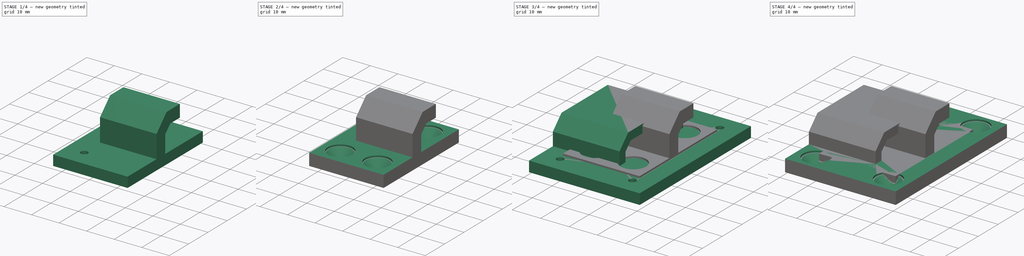
[diagram: build sequence overview — one tinted view per stage of 4, left to right]
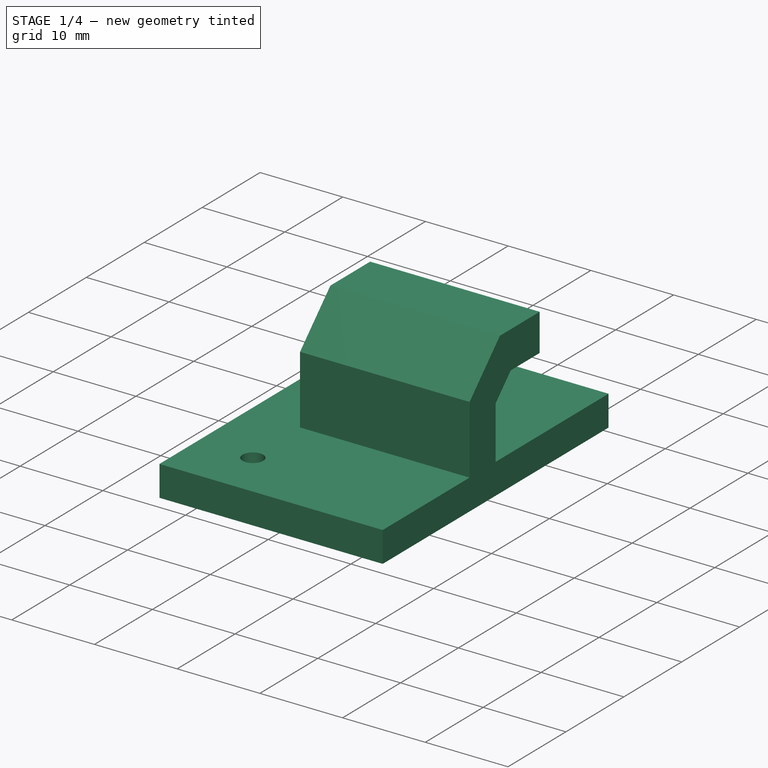
[diagram: stage 1 of 4 — iso view after this stage's code; geometry added in this stage tinted green]
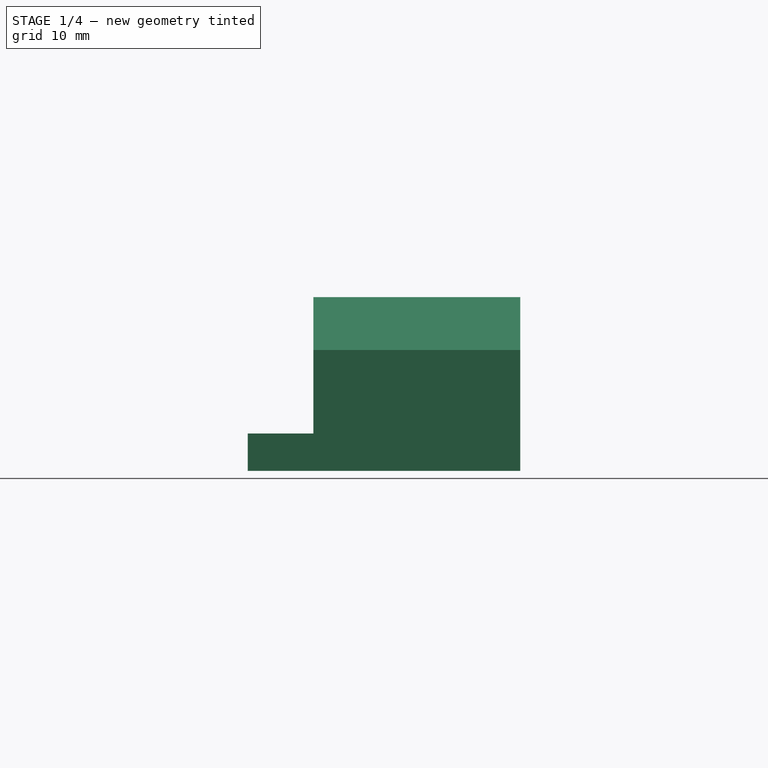
[diagram: stage 1 of 4 — front view after this stage's code; geometry added in this stage tinted green]
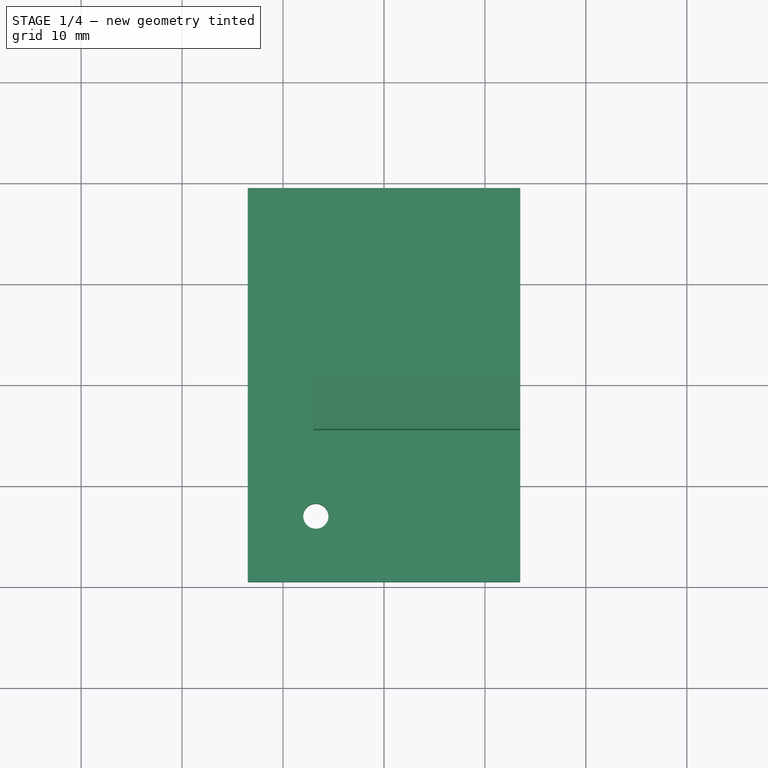
[diagram: stage 1 of 4 — top view after this stage's code; geometry added in this stage tinted green]
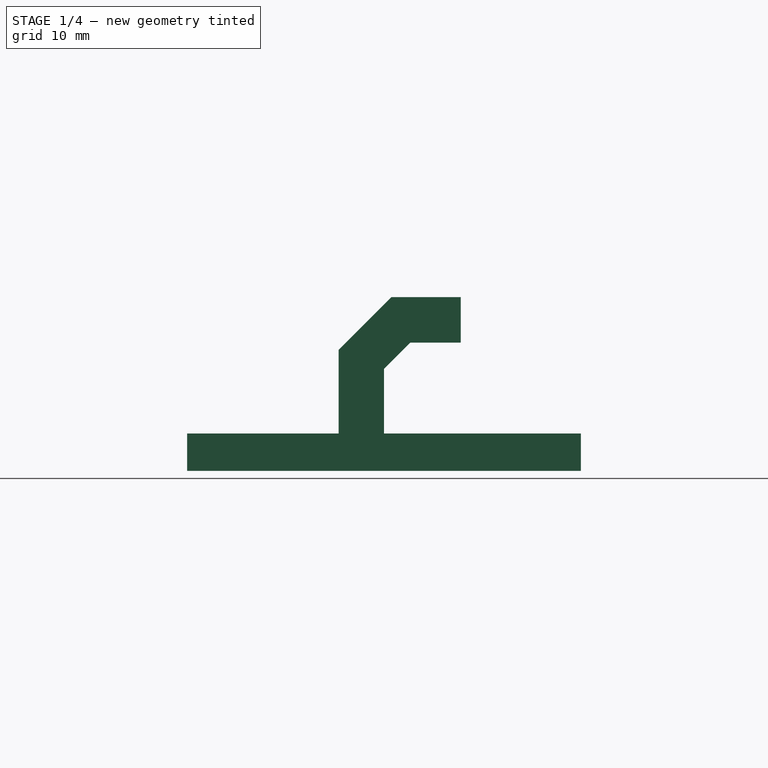
[diagram: stage 1 of 4 — right view after this stage's code; geometry added in this stage tinted green]
FCSTD DOCUMENT  (FreeCAD 1.0R39285 (Git))
Label: Вешалка для ледобура
License: All rights reserved
LicenseURL: https://en.wikipedia.org/wiki/All_rights_reserved
objects: Sketcher::SketchObject×8, PartDesign::Pad×6, PartDesign::Mirrored×4, PartDesign::Plane×2, PartDesign::Pocket×2, PartDesign::MultiTransform×2, PartDesign::Chamfer×2, PartDesign::Body×2, PartDesign::Fillet×1
note: 65 computed .brp shape members not serialized (recipe doc carries the construction recipe); baked Part::Feature solids carry a one-line shape summary decoded from their .brp

FEATURE [PartDesign::Body] Body  label="Петля"
  AllowCompound = false
  Group = -> [Sketch,Pad,DatumPlane,Sketch002,Pad001,Sketch003,Pocket,MultiTransform,Mirrored,Mirrored001,Chamfer,Sketch008,Pad004,Fillet]
  Origin = -> Origin
  Tip = -> Fillet
FEATURE [Sketcher::SketchObject] Sketch010
  ArcFitTolerance = 1e-06
  AttachmentSupport = -> [XY_Plane001]
  FullyConstrained = true
  MakeInternals = false
  MapMode = 5
  sketch-geometry (4):
    g0: LineSegment StartX=-13.5 StartY=19.5 StartZ=0 EndX=-13.5 EndY=-19.5 EndZ=0
    g1: LineSegment StartX=-13.5 StartY=-19.5 StartZ=0 EndX=13.5 EndY=-19.5 EndZ=0
    g2: LineSegment StartX=13.5 StartY=-19.5 StartZ=0 EndX=13.5 EndY=19.5 EndZ=0
    g3: LineSegment StartX=13.5 StartY=19.5 StartZ=0 EndX=-13.5 EndY=19.5 EndZ=0
  constraints (11):
    c: Coincident(g0,g1)
    c: Coincident(g1,g2)
    c: Coincident(g2,g3)
    c: Coincident(g3,g0)
    c: Vertical(g0)
    c: Vertical(g2)
    c: Horizontal(g1)
    c: Horizontal(g3)
    c: DistanceX(g3,g3) = 27
    c: DistanceY(g2,g2) = 39
    c: Symmetric(g2,g0,g-1)
FEATURE [PartDesign::Pad] Pad005  label="Пластина001"
  Direction = (0,0,1)
  Length = 3.7
  Length2 = 10
  Profile = -> Sketch010
  ReferenceAxis = -> Sketch010 [N_Axis]
  Refine = true
  Suppressed = false
  Type = 0
FEATURE [PartDesign::Plane] DatumPlane001
  AttachmentOffset = pos=(-11,0,0) rot=(0,-1,0;1.5708rad)
  AttachmentSupport = -> [Pad005]
  Length = 60
  MapMode = 5
  Placement = pos=(-11,0,3.7) rot=(0,-1,0;1.5708rad)
  ResizeMode = 0
  Width = 60
FEATURE [Sketcher::SketchObject] Sketch011
  ArcFitTolerance = 1e-06
  AttachmentOffset = pos=(0,0,-11) rot=(0,0,-1;1.5708rad)
  AttachmentSupport = -> [DatumPlane001]
  ExternalGeometry = -> [Pad005]
  FullyConstrained = true
  MakeInternals = false
  MapMode = 5
  Placement = pos=(0,0,3.7) rot=(0.57735,-0.57735,-0.57735;2.0944rad)
  sketch-geometry (15):
    g0: LineSegment [constr] StartX=-30.5 StartY=1.35e-14 StartZ=0 EndX=-30.5 EndY=8.26396 EndZ=0
    g1: LineSegment [constr] StartX=-30.5 StartY=8.26396 StartZ=0 EndX=-25.264 EndY=13.5 EndZ=0
    g2: LineSegment StartX=-0.736039 StartY=13.5 StartZ=0 EndX=4.5 EndY=8.26396 EndZ=0
    g3: LineSegment StartX=4.5 StartY=8.26396 StartZ=0 EndX=4.5 EndY=5.3e-15 EndZ=0
    g4: LineSegment [constr] StartX=-30.5 StartY=1.35e-14 StartZ=0 EndX=-26 EndY=1.25e-14 EndZ=0
    g5: LineSegment [constr] StartX=-26 StartY=1.25e-14 StartZ=0 EndX=-26 EndY=6.4 EndZ=0
    g6: LineSegment [constr] StartX=-26 StartY=6.4 StartZ=0 EndX=-23.4 EndY=9 EndZ=0
    g7: LineSegment StartX=-2.6 StartY=9 StartZ=0 EndX=0 EndY=6.4 EndZ=0
    g8: LineSegment StartX=0 StartY=6.4 StartZ=0 EndX=0 EndY=0 EndZ=0
    g9: LineSegment StartX=0 StartY=0 StartZ=0 EndX=4.5 EndY=5.3e-15 EndZ=0
    g10: LineSegment StartX=-7.6 StartY=9 StartZ=0 EndX=-7.6 EndY=13.5 EndZ=0
    g11: LineSegment [constr] StartX=-25.264 StartY=13.5 StartZ=0 EndX=-7.6 EndY=13.5 EndZ=0
    g12: LineSegment StartX=-7.6 StartY=13.5 StartZ=0 EndX=-0.736039 EndY=13.5 EndZ=0
    g13: LineSegment [constr] StartX=-23.4 StartY=9 StartZ=0 EndX=-7.6 EndY=9 EndZ=0
    g14: LineSegment StartX=-7.6 StartY=9 StartZ=0 EndX=-2.6 EndY=9 EndZ=0
  constraints (43):
    c: PointOnObject(g0,g-3)
    c: Vertical(g0)
    c: Coincident(g0,g1)
    c: Coincident(g1,g11)
    c: Coincident(g12,g2)
    c: Coincident(g2,g3)
    c: PointOnObject(g3,g-3)
    c: Coincident(g0,g4)
    c: PointOnObject(g4,g-3)
    c: Coincident(g4,g5)
    c: Vertical(g5)
    c: Coincident(g5,g6)
    c: Coincident(g6,g13)
    c: Coincident(g14,g7)
    c: Coincident(g7,g8)
    c: Vertical(g8)
    c: Coincident(g8,g9)
    c: Coincident(g9,g3)
    c: Vertical(g3)
    c: Angle(g5,g6) = 2.35619
    c: Angle(g7,g8) = 2.35619
    c: Parallel(g6,g1)
    c: Parallel(g2,g7)
    c: Distance(g0,g5) = 4.5
    c: Distance(g1,g6) = 4.5
    c: Distance(g7,g2) = 4.5
    c: Distance(g8,g3) = 4.5
    c: DistanceX(g5,g7) = 26
    c: Equal(g7,g6)
    c: DistanceY(g4,g6) = 9
    c: DistanceY(g6,g6) = 2.6
    c: Vertical(g10)
    c: Coincident(g11,g12)
    c: Horizontal(g11)
    c: Horizontal(g12)
    c: Coincident(g13,g14)
    c: Distance(g11,g13) = 4.5
    c: Horizontal(g13)
    c: Horizontal(g14)
    c: Coincident(g10,g13)
    c: Coincident(g11,g10)
    c: DistanceX(g14,g14) = 5
    c: Coincident(g8,g-1)
FEATURE [PartDesign::Pad] Pad006  label="Скоба001"
  BaseFeature = -> Pad005
  Direction = (-1,0,2e-16)
  Length = 13.5
  Length2 = 7
  Profile = -> Sketch011
  ReferenceAxis = -> Sketch011 [N_Axis]
  Refine = true
  Reversed = true
  Suppressed = false
  Type = 4
FEATURE [Sketcher::SketchObject] Sketch012
  ArcFitTolerance = 1e-06
  AttachmentSupport = -> [Pad006]
  ExternalGeometry = -> [Pad006]
  FullyConstrained = true
  MakeInternals = false
  MapMode = 5
  Placement = pos=(0,0,3.7) rot=(0,0,1;0rad)
  sketch-geometry (7):
    g0: Circle CenterX=-6.75 CenterY=-13 CenterZ=0 NormalX=0 NormalY=0 NormalZ=1 AngleXU=0 Radius=1.25
    g1: ArcOfCircle [constr] CenterX=-1e-16 CenterY=-13 CenterZ=0 NormalX=0 NormalY=0 NormalZ=1 AngleXU=0 Radius=1.25 StartAngle=1.5708 EndAngle=4.71239
    g2: GeomPoint [constr] X=0 Y=-19.5 Z=0
    g3: GeomPoint [constr] X=0 Y=-6.5 Z=0
    g4: GeomPoint [constr] X=-13.5 Y=-13 Z=0
    g5: LineSegment [constr] StartX=-1e-16 StartY=-14.25 StartZ=0 EndX=-1e-16 EndY=-11.75 EndZ=0
    g6: GeomPoint X=-6.75 Y=-13 Z=0
  constraints (15):
    c: Vertical(g1,g1)
    c: Vertical(g1,g1)
    c: Horizontal(g1,g0)
    c: Diameter(g0) = 2.5
    c: Equal(g0,g1)
    c: PointOnObject(g2,g-2)
    c: PointOnObject(g3,g-2)
    c: Symmetric(g2,g3,g1)
    c: PointOnObject(g2,g-3)
    c: Coincident(g5,g1)
    c: Coincident(g5,g1)
    c: Symmetric(g1,g4,g6)
    c: PointOnObject(g4,g-4)
    c: DistanceY(g2,g3) = 13
    c: Coincident(g6,g0)
FEATURE [PartDesign::Mirrored] Mirrored002
  MirrorPlane = -> Sketch012 [V_Axis]
  Refine = true
  Suppressed = false
  TransformMode = 0
FEATURE [PartDesign::Mirrored] Mirrored003
  MirrorPlane = -> Sketch012 [H_Axis]
  Refine = true
  Suppressed = false
  TransformMode = 0
FEATURE [PartDesign::Pocket] Pocket001  label="Вырезы для саморезов001"
  BaseFeature = -> Pad006
  Direction = (0,0,-1)
  Length = 5
  Length2 = 5
  Profile = -> Sketch012
  ReferenceAxis = -> Sketch012 [N_Axis]
  Refine = true
  Suppressed = false
  Type = 1
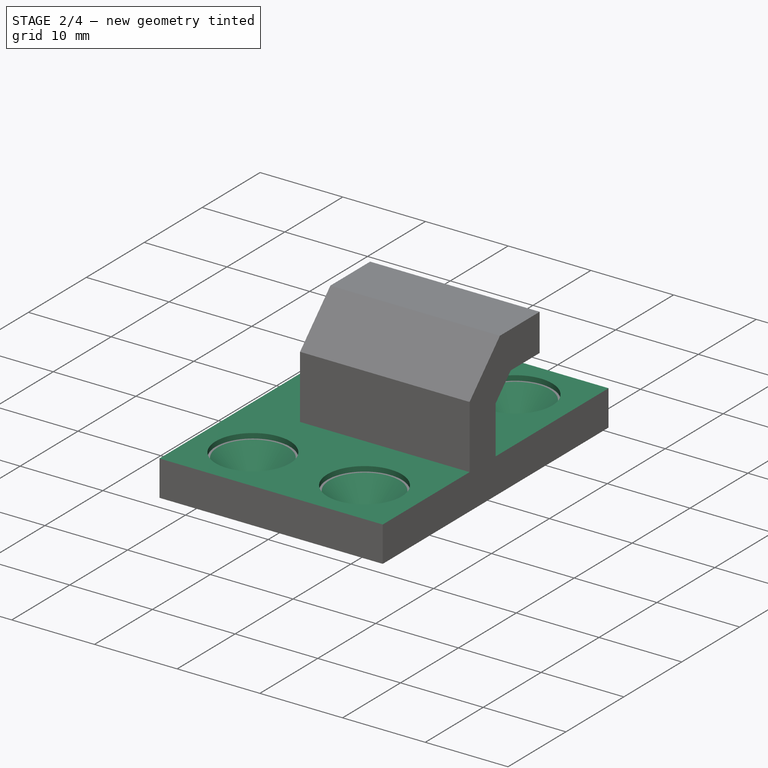
[diagram: stage 2 of 4 — iso view after this stage's code; geometry added in this stage tinted green]
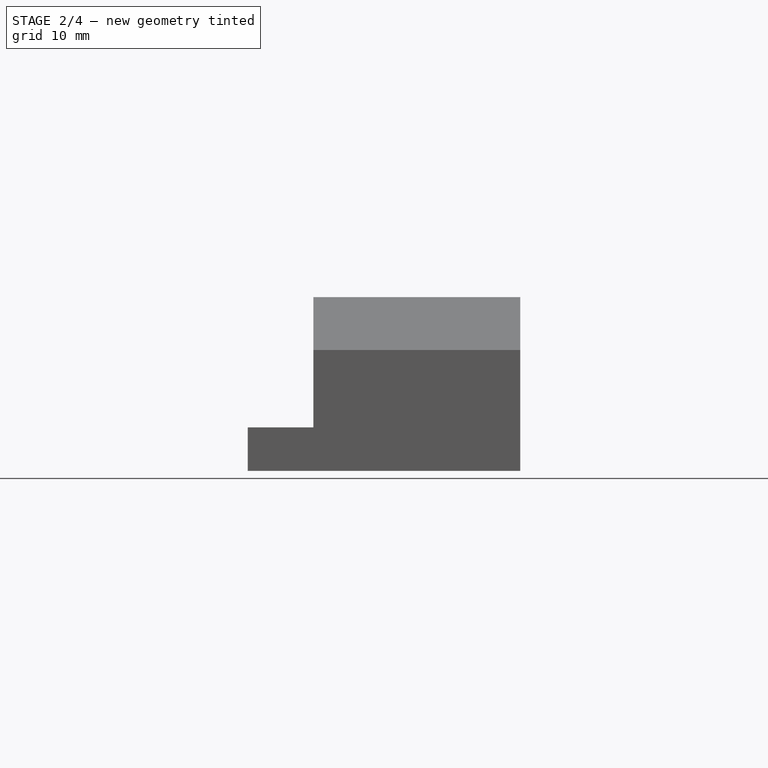
[diagram: stage 2 of 4 — front view after this stage's code; geometry added in this stage tinted green]
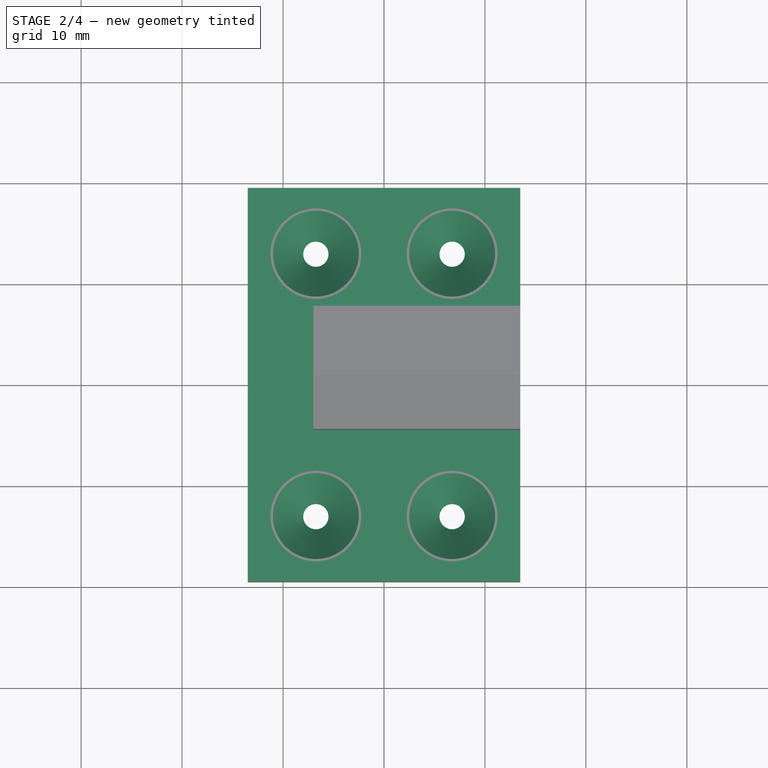
[diagram: stage 2 of 4 — top view after this stage's code; geometry added in this stage tinted green]
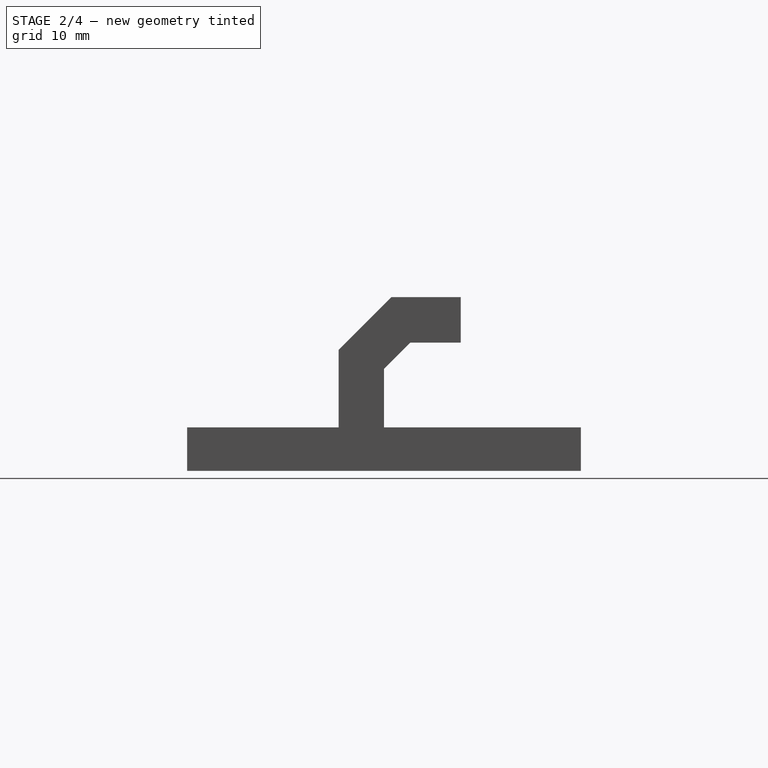
[diagram: stage 2 of 4 — right view after this stage's code; geometry added in this stage tinted green]
FEATURE [PartDesign::MultiTransform] MultiTransform001  label="Дублирование отверстий 001"
  BaseFeature = -> Pocket001
  Originals = -> [Pocket001]
  Refine = true
  Suppressed = false
  TransformMode = 0
  Transformations = -> [Mirrored002,Mirrored003]
FEATURE [PartDesign::Chamfer] Chamfer001  label="Зинковка001"
  Angle = 45
  Base = -> MultiTransform001 [Edge23,Edge24,Edge22,Edge21]
  BaseFeature = -> MultiTransform001
  ChamferType = 0
  FlipDirection = false
  Refine = true
  Size = 3
  Size2 = 1
  SupportTransform = false
  Suppressed = false
  UseAllEdges = false
FEATURE [Sketcher::SketchObject] Sketch013
  ArcFitTolerance = 1e-06
  AttachmentSupport = -> [Chamfer001]
  ExternalGeometry = -> [Chamfer001]
  FullyConstrained = false
  MakeInternals = false
  MapMode = 5
  Placement = pos=(0,0,3.7) rot=(0,0,1;0rad)
  sketch-geometry (10):
    g0: LineSegment StartX=-13.5 StartY=19.5 StartZ=0 EndX=13.5 EndY=19.5 EndZ=0
    g1: LineSegment StartX=13.5 StartY=19.5 StartZ=0 EndX=13.5 EndY=-19.5 EndZ=0
    g2: LineSegment StartX=13.5 StartY=-19.5 StartZ=0 EndX=-13.5 EndY=-19.5 EndZ=0
    g3: LineSegment StartX=-13.5 StartY=-19.5 StartZ=0 EndX=-13.5 EndY=-4.06943 EndZ=0
    g4: Circle CenterX=-6.75 CenterY=-13 CenterZ=0 NormalX=0 NormalY=0 NormalZ=1 AngleXU=0 Radius=4.5
    g5: Circle CenterX=6.75 CenterY=-13 CenterZ=0 NormalX=0 NormalY=0 NormalZ=1 AngleXU=0 Radius=4.5
    g6: Circle CenterX=6.75 CenterY=13 CenterZ=0 NormalX=0 NormalY=0 NormalZ=1 AngleXU=0 Radius=4.5
    g7: Circle CenterX=-6.75 CenterY=13 CenterZ=0 NormalX=0 NormalY=0 NormalZ=1 AngleXU=0 Radius=4.5
    g8: LineSegment StartX=-13.5 StartY=0.430566 StartZ=0 EndX=-13.5 EndY=19.5 EndZ=0
    g9: LineSegment StartX=-13.5 StartY=-4.06943 StartZ=0 EndX=-13.5 EndY=0.430566 EndZ=0
  constraints (20):
    c: Vertical(g3)
    c: Coincident(g4,g-10)
    c: Coincident(g5,g-9)
    c: Coincident(g6,g-8)
    c: Coincident(g7,g-7)
    c: Diameter(g7) = 9
    c: Equal(g7,g6)
    c: Equal(g6,g5)
    c: Equal(g5,g4)
    c: Coincident(g-11,g1)
    c: Coincident(g-11,g0)
    c: Coincident(g2,g-14)
    c: Coincident(g2,g3)
    c: Coincident(g1,g-13)
    c: Coincident(g1,g2)
    c: Coincident(g8,g0)
    c: Vertical(g8)
    c: Coincident(g0,g-12)
    c: Coincident(g9,g3)
    c: Coincident(g9,g8)
FEATURE [PartDesign::Pad] Pad007
  BaseFeature = -> Chamfer001
  Direction = (0,0,1)
  Length = 0.6
  Length2 = 10
  Profile = -> Sketch013
  ReferenceAxis = -> Sketch013 [N_Axis]
  Refine = true
  Suppressed = false
  Type = 0
FEATURE [PartDesign::Body] Body001  label="Крюк"
  AllowCompound = false
  Group = -> [Sketch010,Pad005,DatumPlane001,Sketch011,Pad006,Sketch012,Pocket001,MultiTransform001,Mirrored002,Mirrored003,Chamfer001,Sketch013,Pad007]
  Origin = -> Origin001
  Placement = pos=(-45,0,0) rot=(0,0,1;0rad)
  Tip = -> Pad007
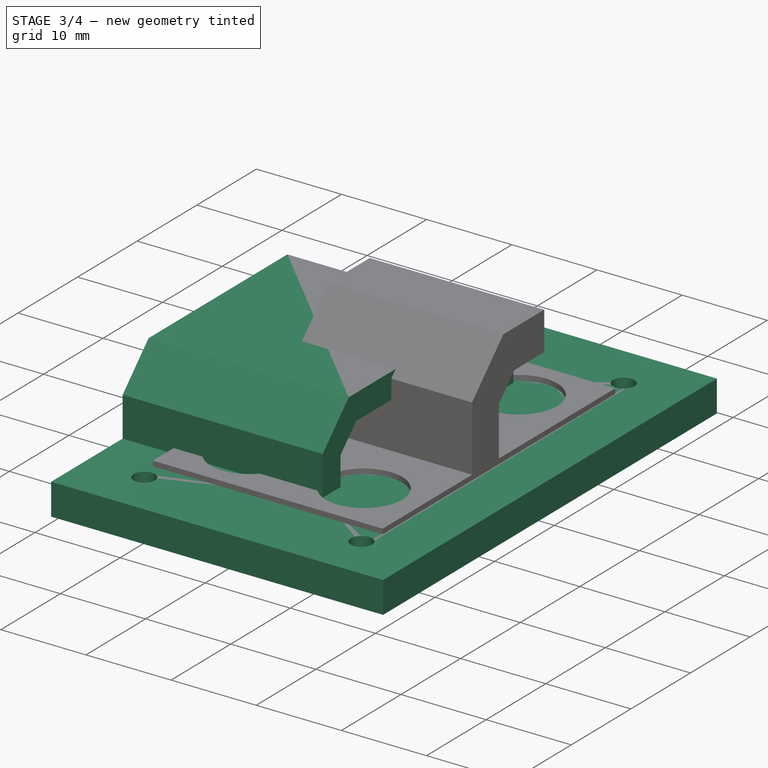
[diagram: stage 3 of 4 — iso view after this stage's code; geometry added in this stage tinted green]
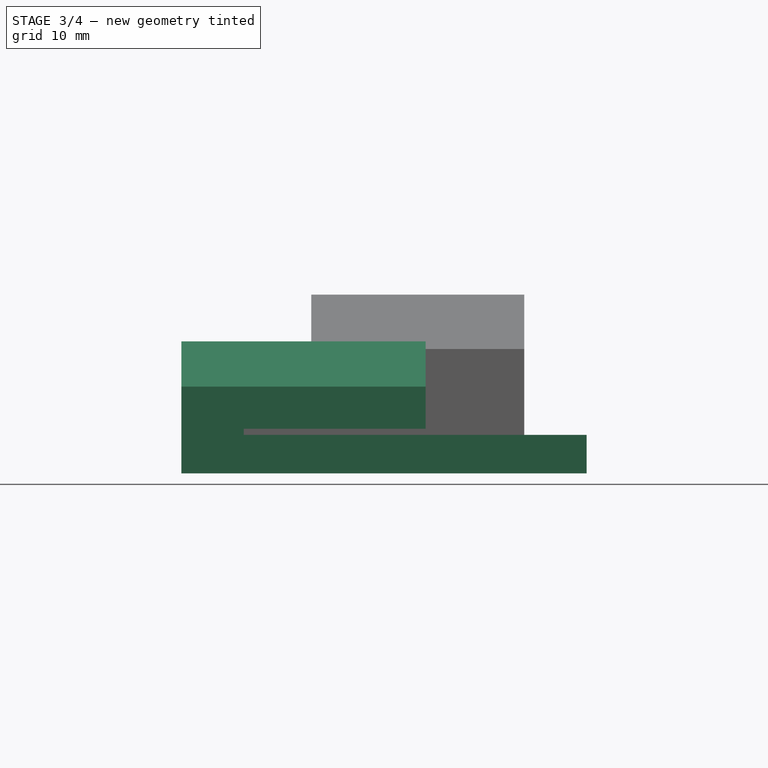
[diagram: stage 3 of 4 — front view after this stage's code; geometry added in this stage tinted green]
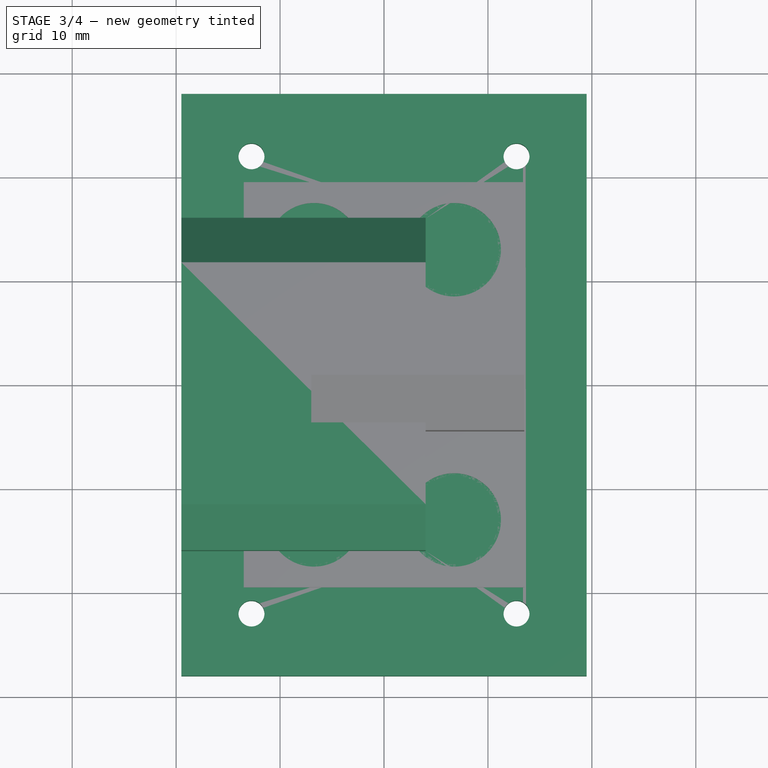
[diagram: stage 3 of 4 — top view after this stage's code; geometry added in this stage tinted green]
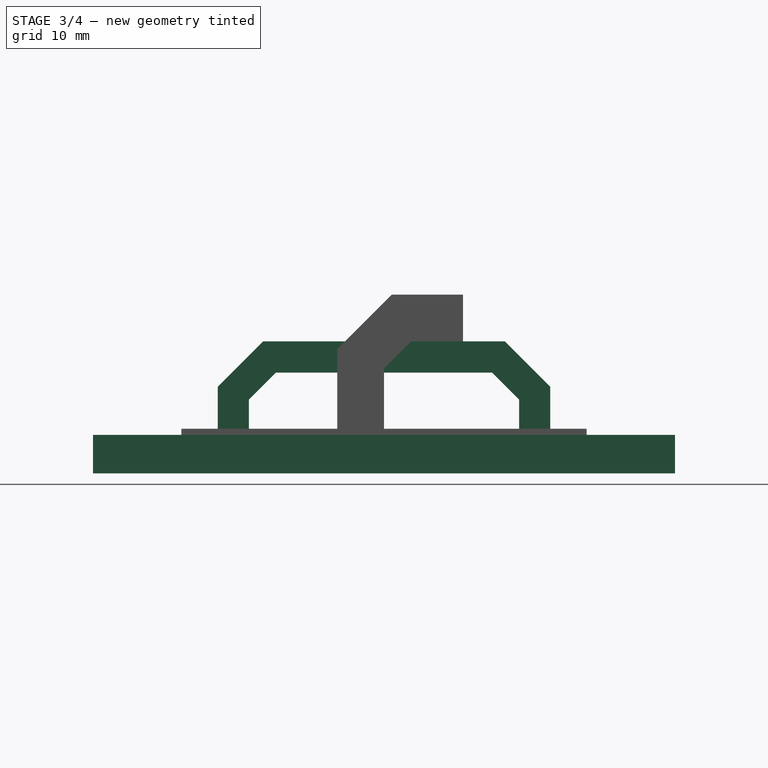
[diagram: stage 3 of 4 — right view after this stage's code; geometry added in this stage tinted green]
FEATURE [Sketcher::SketchObject] Sketch
  ArcFitTolerance = 1e-06
  AttachmentSupport = -> [XY_Plane]
  FullyConstrained = true
  MakeInternals = false
  MapMode = 5
  sketch-geometry (4):
    g0: LineSegment StartX=-19.5 StartY=28 StartZ=0 EndX=-19.5 EndY=-28 EndZ=0
    g1: LineSegment StartX=-19.5 StartY=-28 StartZ=0 EndX=19.5 EndY=-28 EndZ=0
    g2: LineSegment StartX=19.5 StartY=-28 StartZ=0 EndX=19.5 EndY=28 EndZ=0
    g3: LineSegment StartX=19.5 StartY=28 StartZ=0 EndX=-19.5 EndY=28 EndZ=0
  constraints (11):
    c: Coincident(g0,g1)
    c: Coincident(g1,g2)
    c: Coincident(g2,g3)
    c: Coincident(g3,g0)
    c: Vertical(g0)
    c: Vertical(g2)
    c: Horizontal(g1)
    c: Horizontal(g3)
    c: DistanceX(g3,g3) = 39
    c: DistanceY(g2,g2) = 56
    c: Symmetric(g2,g0,g-1)
FEATURE [PartDesign::Pad] Pad  label="Пластина"
  Direction = (0,0,1)
  Length = 3.7
  Length2 = 10
  Profile = -> Sketch
  ReferenceAxis = -> Sketch [N_Axis]
  Refine = true
  Suppressed = false
  Type = 0
FEATURE [PartDesign::Plane] DatumPlane
  AttachmentOffset = pos=(-11,0,0) rot=(0,-1,0;1.5708rad)
  AttachmentSupport = -> [Pad]
  Length = 60
  MapMode = 5
  Placement = pos=(-11,0,3.7) rot=(0,-1,0;1.5708rad)
  ResizeMode = 0
  Width = 60
FEATURE [Sketcher::SketchObject] Sketch002
  ArcFitTolerance = 1e-06
  AttachmentOffset = pos=(0,0,0) rot=(0,0,-1;1.5708rad)
  AttachmentSupport = -> [DatumPlane]
  ExternalGeometry = -> [Pad]
  FullyConstrained = true
  MakeInternals = false
  MapMode = 5
  Placement = pos=(-11,0,3.7) rot=(0.57735,-0.57735,-0.57735;2.0944rad)
  sketch-geometry (12):
    g0: LineSegment StartX=-16 StartY=8.9e-15 StartZ=0 EndX=-16 EndY=4.64264 EndZ=0
    g1: LineSegment StartX=-16 StartY=4.64264 StartZ=0 EndX=-11.6426 EndY=9 EndZ=0
    g2: LineSegment StartX=-11.6426 StartY=9 StartZ=0 EndX=11.6426 EndY=9 EndZ=0
    g3: LineSegment StartX=11.6426 StartY=9 StartZ=0 EndX=16 EndY=4.64264 EndZ=0
    g4: LineSegment StartX=16 StartY=4.64264 StartZ=0 EndX=16 EndY=1.8e-15 EndZ=0
    g5: LineSegment StartX=-16 StartY=8.9e-15 StartZ=0 EndX=-13 EndY=8.2e-15 EndZ=0
    g6: LineSegment StartX=-13 StartY=8.2e-15 StartZ=0 EndX=-13 EndY=3.4 EndZ=0
    g7: LineSegment StartX=-13 StartY=3.4 StartZ=0 EndX=-10.4 EndY=6 EndZ=0
    g8: LineSegment StartX=-10.4 StartY=6 StartZ=0 EndX=10.4 EndY=6 EndZ=0
    g9: LineSegment StartX=10.4 StartY=6 StartZ=0 EndX=13 EndY=3.4 EndZ=0
    g10: LineSegment StartX=13 StartY=3.4 StartZ=0 EndX=13 EndY=2.7e-15 EndZ=0
    g11: LineSegment StartX=13 StartY=2.7e-15 StartZ=0 EndX=16 EndY=1.8e-15 EndZ=0
  constraints (35):
    c: PointOnObject(g0,g-3)
    c: Vertical(g0)
    c: Coincident(g0,g1)
    c: Coincident(g1,g2)
    c: Horizontal(g2)
    c: Coincident(g2,g3)
    c: Coincident(g3,g4)
    c: PointOnObject(g4,g-3)
    c: Coincident(g0,g5)
    c: PointOnObject(g5,g-3)
    c: Coincident(g5,g6)
    c: Vertical(g6)
    c: Coincident(g6,g7)
    c: Coincident(g7,g8)
    c: Coincident(g8,g9)
    c: Coincident(g9,g10)
    c: PointOnObject(g10,g-3)
    c: Vertical(g10)
    c: Coincident(g10,g11)
    c: Coincident(g11,g4)
    c: Vertical(g4)
    c: Angle(g6,g7) = 2.35619
    c: Angle(g9,g10) = 2.35619
    c: Parallel(g7,g1)
    c: Parallel(g3,g9)
    c: Distance(g0,g6) = 3
    c: Distance(g2,g8) = 3
    c: Distance(g1,g7) = 3
    c: Distance(g9,g3) = 3
    c: Distance(g10,g4) = 3
    c: DistanceX(g6,g9) = 26
    c: Equal(g9,g7)
    c: Symmetric(g8,g7,g-2)
    c: DistanceY(g5,g7) = 6
    c: DistanceY(g7,g7) = 2.6
FEATURE [PartDesign::Pad] Pad001  label="Скоба"
  BaseFeature = -> Pad
  Direction = (-1,0,2e-16)
  Length = 15
  Length2 = 8.5
  Profile = -> Sketch002
  ReferenceAxis = -> Sketch002 [N_Axis]
  Refine = true
  Reversed = true
  Suppressed = false
  Type = 4
FEATURE [Sketcher::SketchObject] Sketch003
  ArcFitTolerance = 1e-06
  AttachmentSupport = -> [Pad001]
  ExternalGeometry = -> [Pad001]
  FullyConstrained = true
  MakeInternals = false
  MapMode = 5
  Placement = pos=(0,0,3.7) rot=(0,0,1;0rad)
  sketch-geometry (7):
    g0: Circle CenterX=-12.75 CenterY=-22 CenterZ=0 NormalX=0 NormalY=0 NormalZ=1 AngleXU=0 Radius=1.25
    g1: ArcOfCircle [constr] CenterX=0 CenterY=-22 CenterZ=0 NormalX=0 NormalY=0 NormalZ=1 AngleXU=0 Radius=1.25 StartAngle=1.5708 EndAngle=4.71239
    g2: GeomPoint [constr] X=0 Y=-28 Z=0
    g3: GeomPoint [constr] X=0 Y=-16 Z=0
    g4: GeomPoint [constr] X=-19.5 Y=-22 Z=0
    g5: LineSegment [constr] StartX=0 StartY=-23.25 StartZ=0 EndX=0 EndY=-20.75 EndZ=0
    g6: GeomPoint X=-9.75 Y=-22 Z=0
  constraints (16):
    c: Vertical(g1,g1)
    c: Vertical(g1,g1)
    c: Horizontal(g1,g0)
    c: Diameter(g0) = 2.5
    c: Equal(g0,g1)
    c: PointOnObject(g2,g-2)
    c: PointOnObject(g3,g-2)
    c: Symmetric(g2,g3,g1)
    c: PointOnObject(g3,g-4)
    c: PointOnObject(g2,g-3)
    c: Coincident(g5,g1)
    c: Coincident(g5,g1)
    c: Symmetric(g1,g4,g6)
    c: DistanceX(g0,g6) = 3
    c: Horizontal(g4,g1)
    c: PointOnObject(g4,g-5)
FEATURE [PartDesign::Pocket] Pocket  label="Вырезы для саморезов"
  BaseFeature = -> Pad001
  Direction = (0,0,-1)
  Length = 5
  Length2 = 5
  Profile = -> Sketch003
  ReferenceAxis = -> Sketch003 [N_Axis]
  Refine = true
  Suppressed = false
  Type = 1
FEATURE [PartDesign::Mirrored] Mirrored
  MirrorPlane = -> Sketch003 [V_Axis]
  Refine = true
  Suppressed = false
  TransformMode = 0
FEATURE [PartDesign::Mirrored] Mirrored001
  MirrorPlane = -> Sketch003 [H_Axis]
  Refine = true
  Suppressed = false
  TransformMode = 0
FEATURE [PartDesign::MultiTransform] MultiTransform  label="Дублирование отверстий "
  BaseFeature = -> Pocket
  Originals = -> [Pocket]
  Refine = true
  Suppressed = false
  TransformMode = 0
  Transformations = -> [Mirrored,Mirrored001]
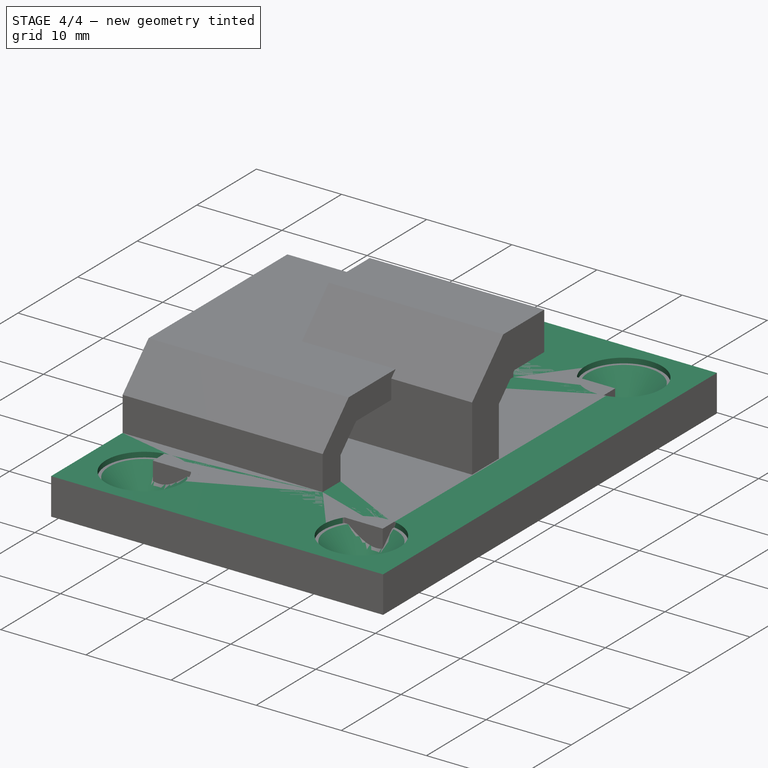
[diagram: stage 4 of 4 — iso view after this stage's code; geometry added in this stage tinted green]
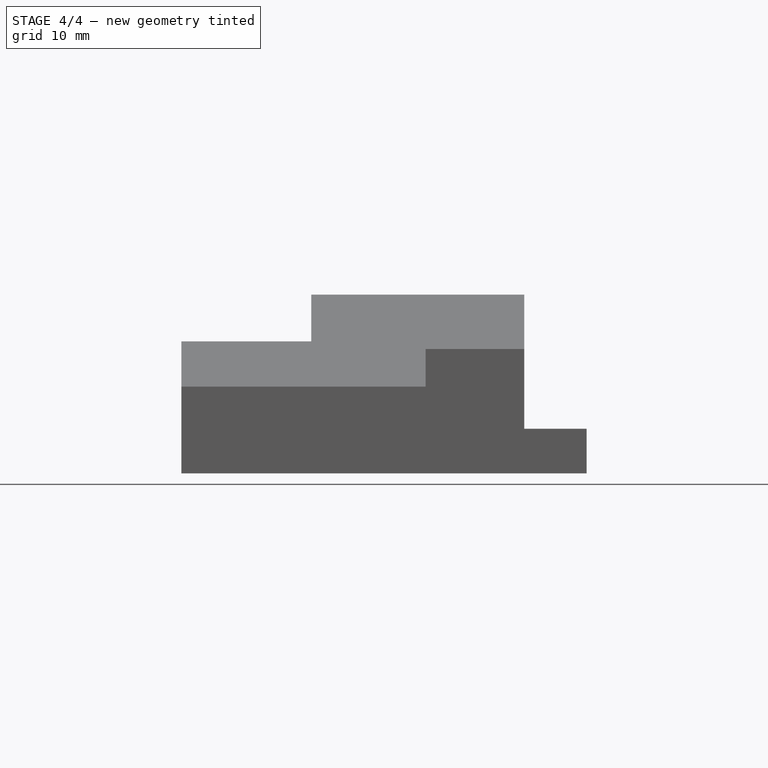
[diagram: stage 4 of 4 — front view after this stage's code; geometry added in this stage tinted green]
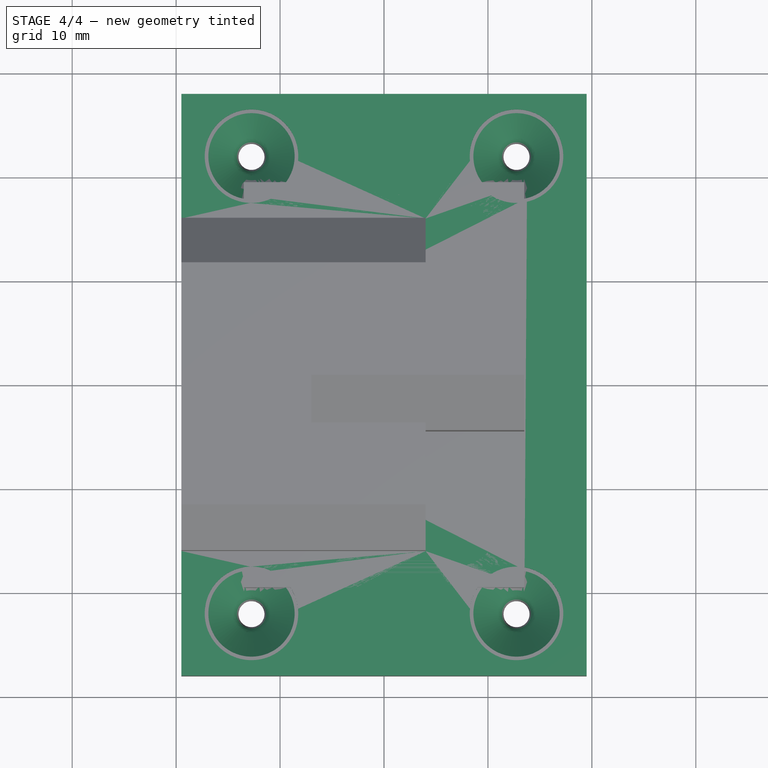
[diagram: stage 4 of 4 — top view after this stage's code; geometry added in this stage tinted green]
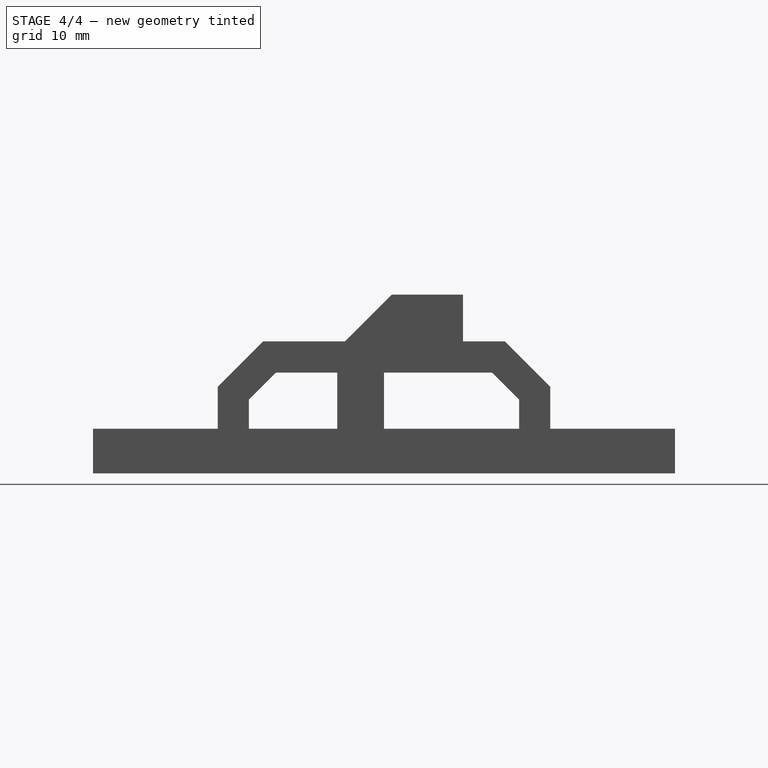
[diagram: stage 4 of 4 — right view after this stage's code; geometry added in this stage tinted green]
FEATURE [PartDesign::Chamfer] Chamfer  label="Зинковка"
  Angle = 45
  Base = -> MultiTransform [Edge37,Edge38,Edge36,Edge35]
  BaseFeature = -> MultiTransform
  ChamferType = 0
  FlipDirection = false
  Refine = true
  Size = 2.9
  Size2 = 1
  SupportTransform = false
  Suppressed = false
  UseAllEdges = false
FEATURE [Sketcher::SketchObject] Sketch008
  ArcFitTolerance = 1e-06
  AttachmentSupport = -> [Chamfer]
  ExternalGeometry = -> [Chamfer]
  FullyConstrained = true
  MakeInternals = false
  MapMode = 5
  Placement = pos=(0,0,3.7) rot=(0,0,1;0rad)
  sketch-geometry (16):
    g0: LineSegment StartX=-19.5 StartY=16 StartZ=0 EndX=-19.5 EndY=28 EndZ=0
    g1: LineSegment StartX=-19.5 StartY=28 StartZ=0 EndX=19.5 EndY=28 EndZ=0
    g2: LineSegment StartX=19.5 StartY=28 StartZ=0 EndX=19.5 EndY=-28 EndZ=0
    g3: LineSegment StartX=19.5 StartY=-28 StartZ=0 EndX=-19.5 EndY=-28 EndZ=0
    g4: LineSegment StartX=-19.5 StartY=-28 StartZ=0 EndX=-19.5 EndY=-16 EndZ=0
    g5: LineSegment StartX=-19.5 StartY=-16 StartZ=0 EndX=4 EndY=-16 EndZ=0
    g6: LineSegment StartX=4 StartY=-16 StartZ=0 EndX=4 EndY=-13 EndZ=0
    g7: LineSegment StartX=4 StartY=-13 StartZ=0 EndX=-19.5 EndY=-13 EndZ=0
    g8: LineSegment StartX=-19.5 StartY=-13 StartZ=0 EndX=-19.5 EndY=13 EndZ=0
    g9: LineSegment StartX=-19.5 StartY=13 StartZ=0 EndX=4 EndY=13 EndZ=0
    g10: LineSegment StartX=4 StartY=13 StartZ=0 EndX=4 EndY=16 EndZ=0
    g11: LineSegment StartX=4 StartY=16 StartZ=0 EndX=-19.5 EndY=16 EndZ=0
    g12: Circle CenterX=-12.75 CenterY=-22 CenterZ=0 NormalX=0 NormalY=0 NormalZ=1 AngleXU=0 Radius=4.5
    g13: Circle CenterX=12.75 CenterY=-22 CenterZ=0 NormalX=0 NormalY=0 NormalZ=1 AngleXU=0 Radius=4.5
    g14: Circle CenterX=12.75 CenterY=22 CenterZ=0 NormalX=0 NormalY=0 NormalZ=1 AngleXU=0 Radius=4.5
    g15: Circle CenterX=-12.75 CenterY=22 CenterZ=0 NormalX=0 NormalY=0 NormalZ=1 AngleXU=0 Radius=4.5
  constraints (33):
    c: Coincident(g0,g-14)
    c: Coincident(g0,g-13)
    c: Coincident(g0,g1)
    c: Coincident(g1,g-12)
    c: Coincident(g1,g2)
    c: Coincident(g2,g-11)
    c: Coincident(g2,g3)
    c: Coincident(g3,g-10)
    c: Coincident(g3,g4)
    c: Vertical(g4)
    c: Coincident(g4,g5)
    c: Coincident(g5,g-9)
    c: Horizontal(g5)
    c: Coincident(g5,g6)
    c: Coincident(g6,g-8)
    c: Coincident(g6,g7)
    c: Coincident(g7,g-6)
    c: Coincident(g7,g8)
    c: Coincident(g8,g-5)
    c: Coincident(g8,g9)
    c: Coincident(g9,g-4)
    c: Coincident(g9,g10)
    c: Coincident(g10,g-3)
    c: Coincident(g10,g11)
    c: Coincident(g11,g0)
    c: Coincident(g12,g-18)
    c: Coincident(g13,g-17)
    c: Coincident(g14,g-16)
    c: Coincident(g15,g-15)
    c: Diameter(g15) = 9
    c: Equal(g15,g14)
    c: Equal(g14,g13)
    c: Equal(g13,g12)
FEATURE [PartDesign::Pad] Pad004
  BaseFeature = -> Chamfer
  Direction = (0,0,1)
  Length = 0.6
  Length2 = 10
  Profile = -> Sketch008
  ReferenceAxis = -> Sketch008 [N_Axis]
  Refine = true
  Suppressed = false
  Type = 0
FEATURE [PartDesign::Fillet] Fillet
  Base = -> Pad004 [Edge71,Edge69,Edge6,Edge73]
  BaseFeature = -> Pad004
  Radius = 1.9
  Refine = true
  SupportTransform = false
  Suppressed = false
  UseAllEdges = false
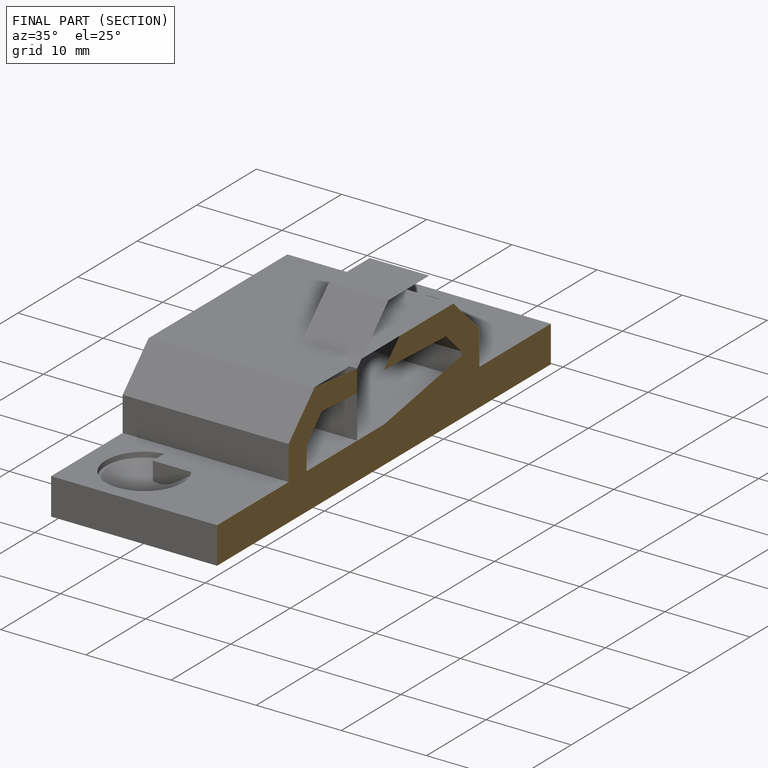
[diagram: finished part — half-section view (interior)]
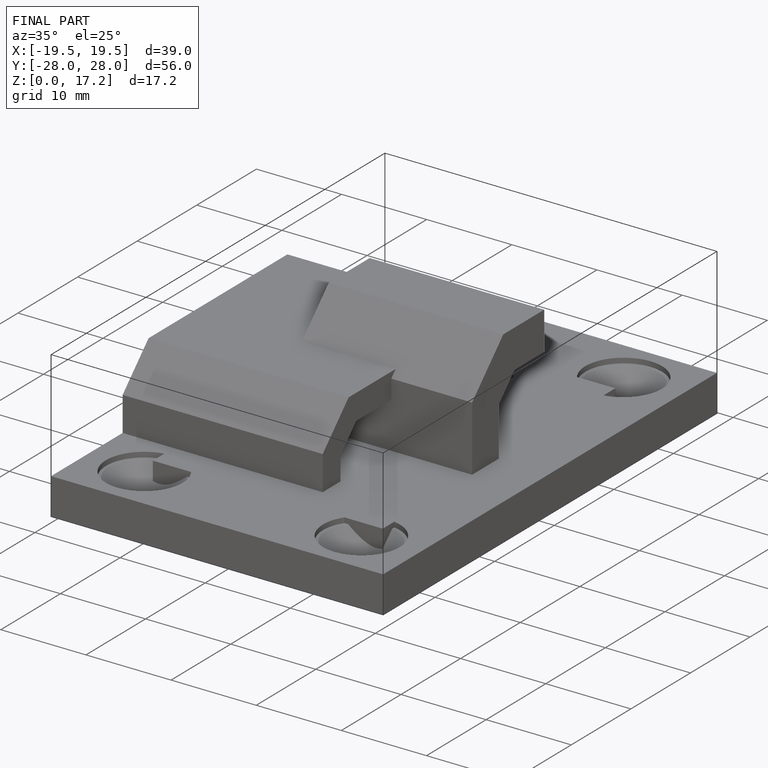
[diagram: finished part — iso view with bounding-box wireframe]
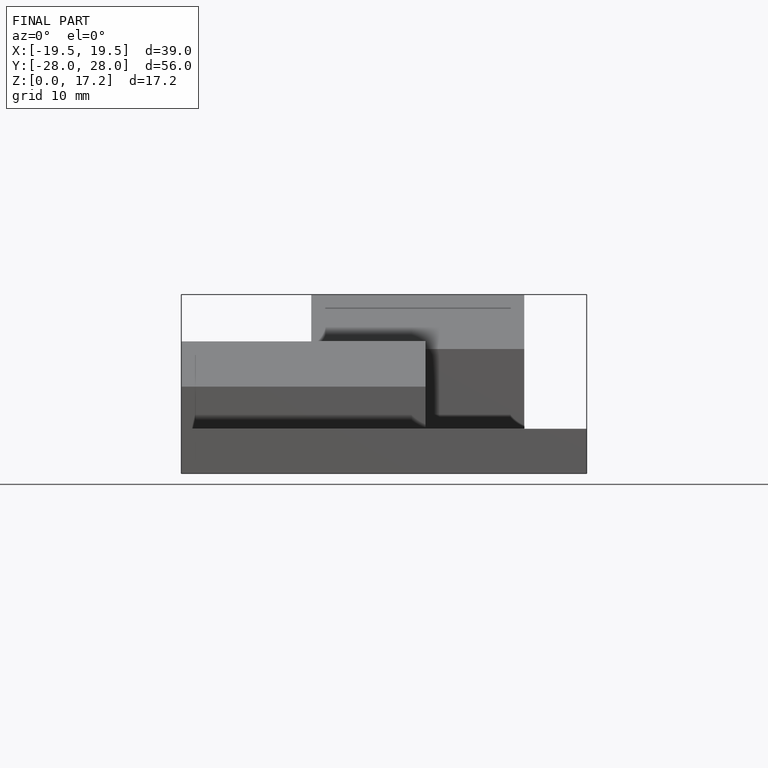
[diagram: finished part — front view with bounding-box wireframe]
